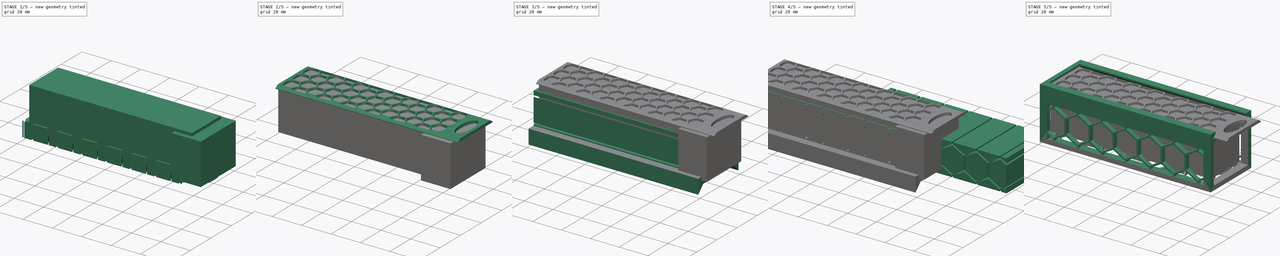
[diagram: build sequence overview — one tinted view per stage of 5, left to right]
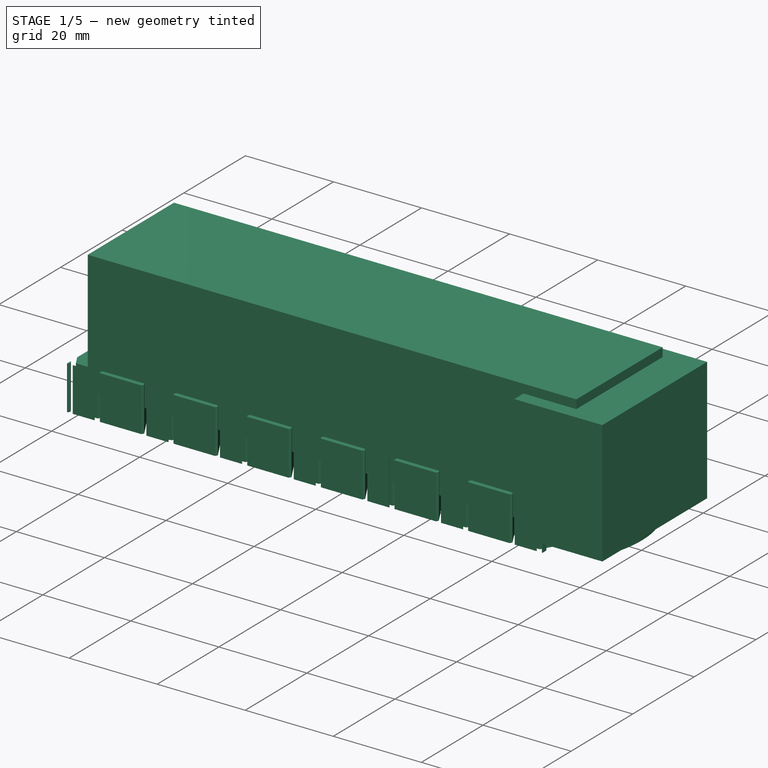
[diagram: stage 1 of 5 — iso view after this stage's code; geometry added in this stage tinted green]
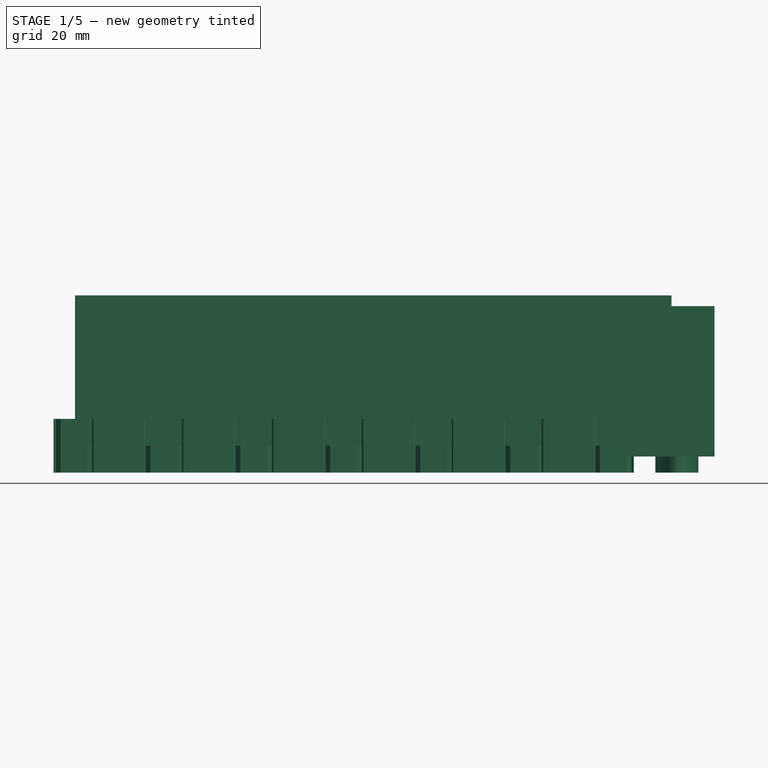
[diagram: stage 1 of 5 — front view after this stage's code; geometry added in this stage tinted green]
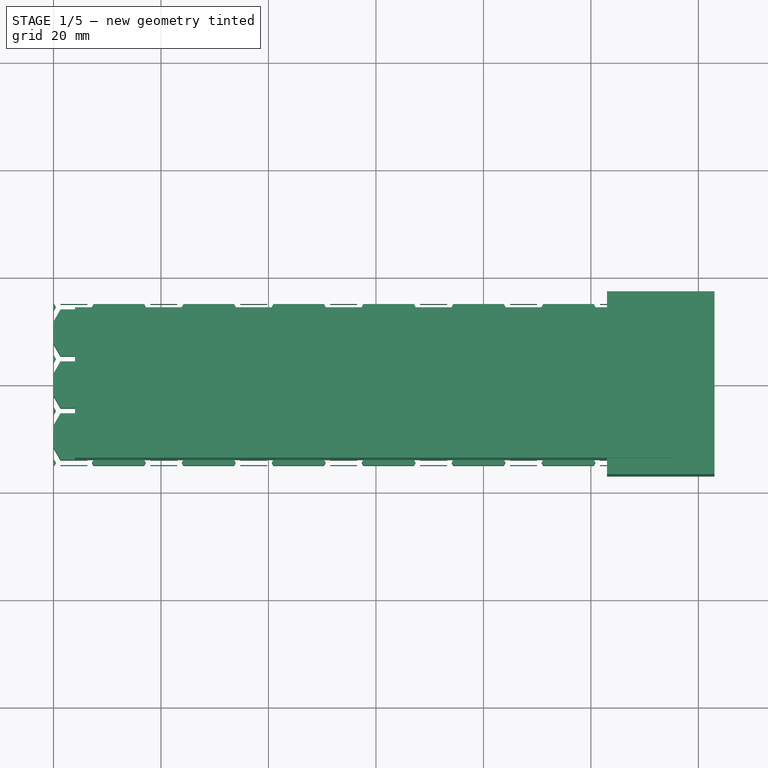
[diagram: stage 1 of 5 — top view after this stage's code; geometry added in this stage tinted green]
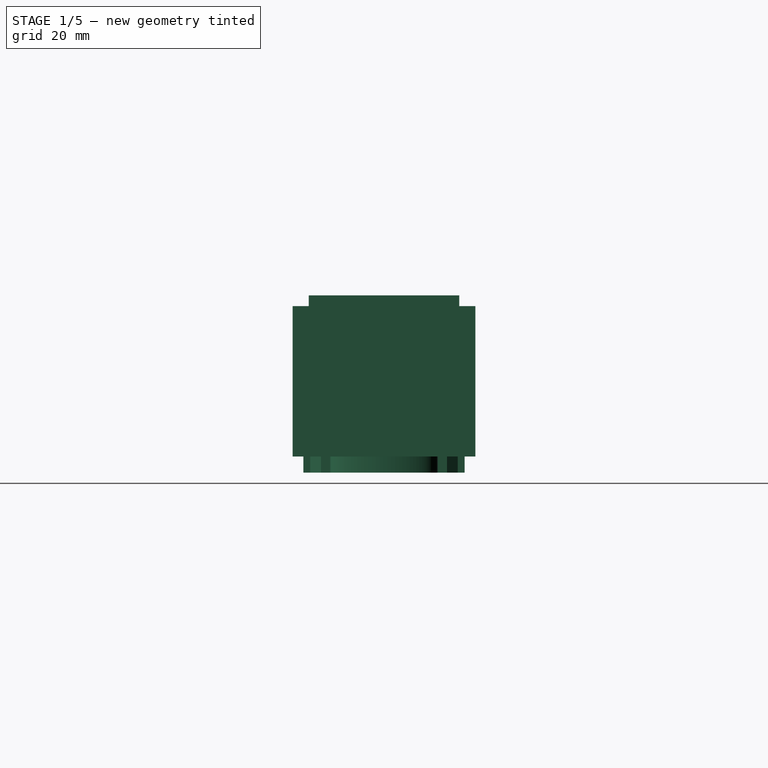
[diagram: stage 1 of 5 — right view after this stage's code; geometry added in this stage tinted green]
FCSTD DOCUMENT  (FreeCAD 0.20R29410 (Git))
Label: box_sliding_lid
License: All rights reserved
LicenseURL: http://en.wikipedia.org/wiki/All_rights_reserved
objects: Part::Box×10, Part::Cut×7, Part::MultiFuse×5, Part::FeaturePython×4, Part::Compound×4, Sketcher::SketchObject×3, PartDesign::Pad×3, PartDesign::Body×3, Part::Mirroring×1, Spreadsheet::Sheet×1, Part::Fillet×1, Part::Ellipse×1, Part::Extrusion×1, Part::Feature×1
note: 47 computed .brp shape members not serialized (recipe doc carries the construction recipe); baked Part::Feature solids carry a one-line shape summary decoded from their .brp

FEATURE [Part::Box] Box  label="internal cube"
  AttacherType = Attacher::AttachEngine3D
  Height = 28
  Length = 112
  Placement = pos=(-56,-17,3) rot=(0,0,1;0rad)
  Width = 34
  expr: .Placement.Base.x = -Length / 2
  expr: .Placement.Base.y = -Width / 2
  expr: .Placement.Base.z = <<p>>.wall
  expr: Height = <<p>>.internal_height
  expr: Length = <<p>>.internal_length
  expr: Width = <<p>>.internal_width
FEATURE [PartDesign::Body] Body002  label="lid body"
  Group = -> [Sketch002,Pad002]
  Origin = -> Origin002
  Placement = pos=(3,0,0) rot=(0,0,1;0rad)
  Tip = -> Pad002
FEATURE [Part::Box] Box007  label="HoneycombSolid lid cube"
  AttacherType = Attacher::AttachEngine3D
  Height = 10
  Length = 108
  Width = 30
  expr: Height = 10mm
  expr: Length = <<internal cube>>.Length - 4mm
  expr: Width = <<internal cube>>.Width - 4mm
FEATURE [Part::FeaturePython] HoneycombSolid004  label="HoneycombSolid lid"  # WARN: FeaturePython — macro-defined, semantics opaque (R4)
  Circumradius = 5
  Height = 10
  Length = 108
  Thickness = 1
  Width = 30
  expr: Height = <<HoneycombSolid lid cube>>.Height
  expr: Length = <<HoneycombSolid lid cube>>.Length
  expr: Width = <<HoneycombSolid lid cube>>.Width
FEATURE [Part::Cut] Cut005  label="HoneycombSolid lid cut"
  Base = -> Box007
  Placement = pos=(-60,-15,0) rot=(0,0,1;0rad)
  Tool = -> HoneycombSolid004
  expr: .Placement.Base.x = -<<internal cube>>.Length / 2 - 4mm
  expr: .Placement.Base.y = -<<HoneycombSolid lid>>.Width / 2
FEATURE [Part::Ellipse] Ellipse  label="handle hole ellipse"
  Angle1 = 0
  Angle2 = 360
  AttacherType = Attacher::AttachEngine3D
  MajorRadius = 10
  MinorRadius = 4
  Placement = pos=(0,0,0) rot=(0,0,1;1.5708rad)
  expr: MajorRadius = <<internal cube>>.Width / 2 - <<p>>.wall - 4mm
FEATURE [Part::Extrusion] Extrude  label="handle hole extrude"
  Base = -> Ellipse
  Dir = (0,0,1)
  DirMode = 2
  FaceMakerClass = Part::FaceMakerBullseye
  LengthFwd = 10
  LengthRev = 0
  Placement = pos=(56,0,0) rot=(0,0,1;0rad)
  Solid = true
  Symmetric = false
  expr: .Placement.Base.x = <<internal cube>>.Length / 2
FEATURE [Part::Box] Box008  label="insert muckup"
  AttacherType = Attacher::AttachEngine3D
  Height = 28
  Length = 111
  Placement = pos=(-56,-14,5) rot=(0,0,1;0rad)
  Width = 28
FEATURE [Part::Box] Box009  label="X wall cube remover"
  AttacherType = Attacher::AttachEngine3D
  Height = 28
  Length = 20
  Placement = pos=(43,-17,3) rot=(0,0,1;0rad)
  Width = 34
  expr: .Placement.Base.y = -Width / 2
  expr: .Placement.Base.z = <<p>>.wall
  expr: Height = <<internal cube>>.Height
  expr: Length = 20mm
  expr: Width = <<internal cube>>.Width
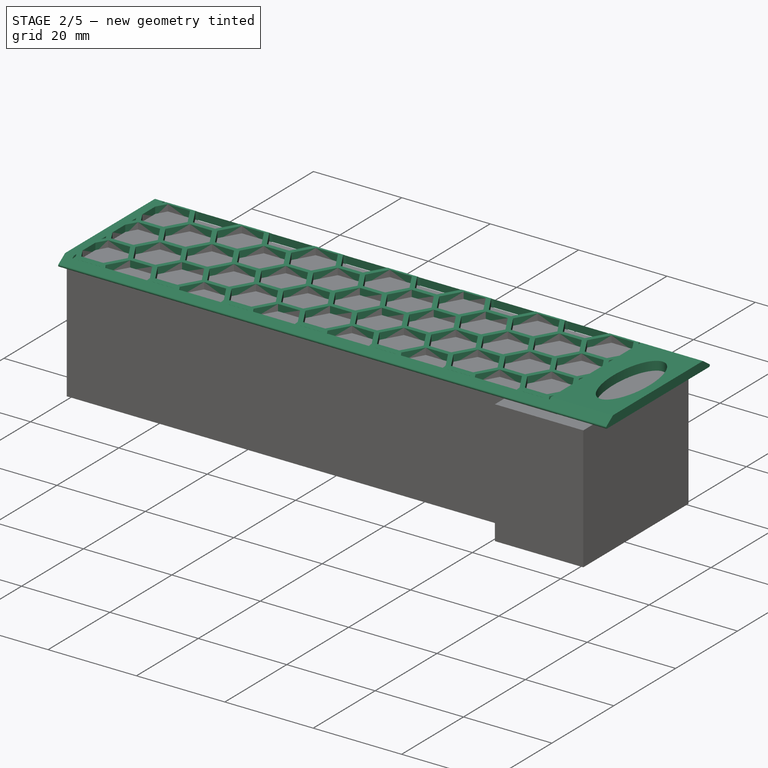
[diagram: stage 2 of 5 — iso view after this stage's code; geometry added in this stage tinted green]
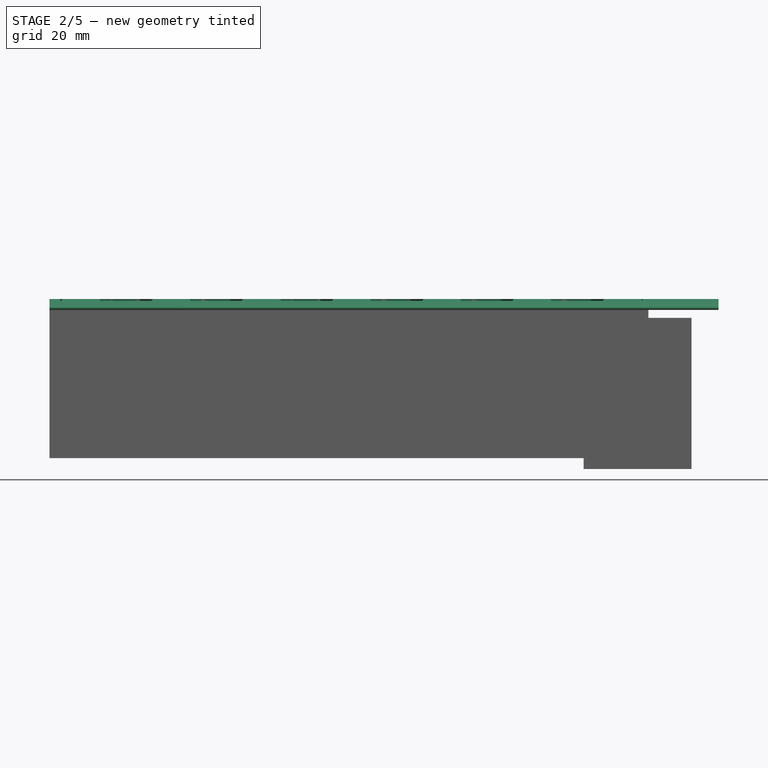
[diagram: stage 2 of 5 — front view after this stage's code; geometry added in this stage tinted green]
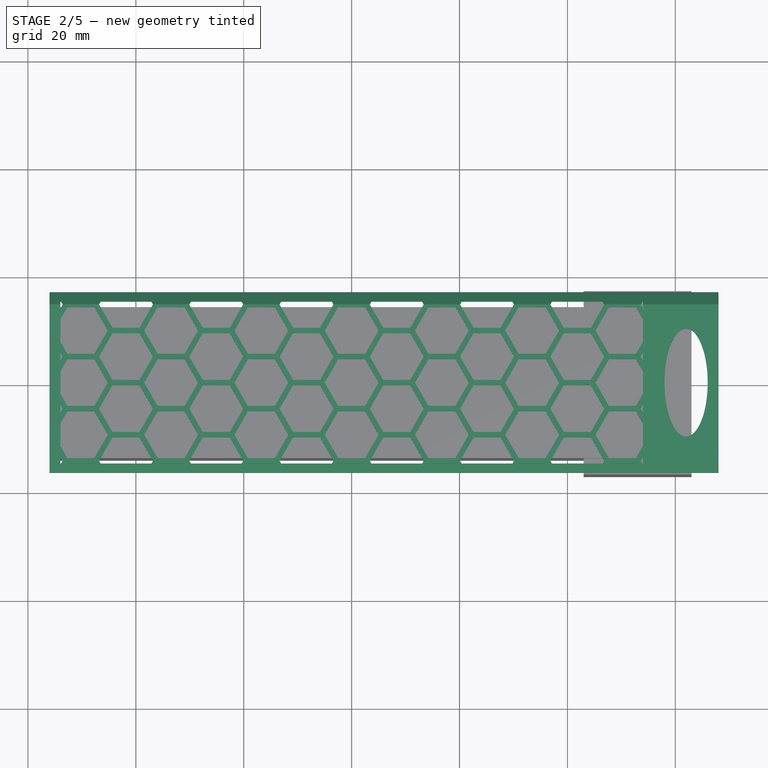
[diagram: stage 2 of 5 — top view after this stage's code; geometry added in this stage tinted green]
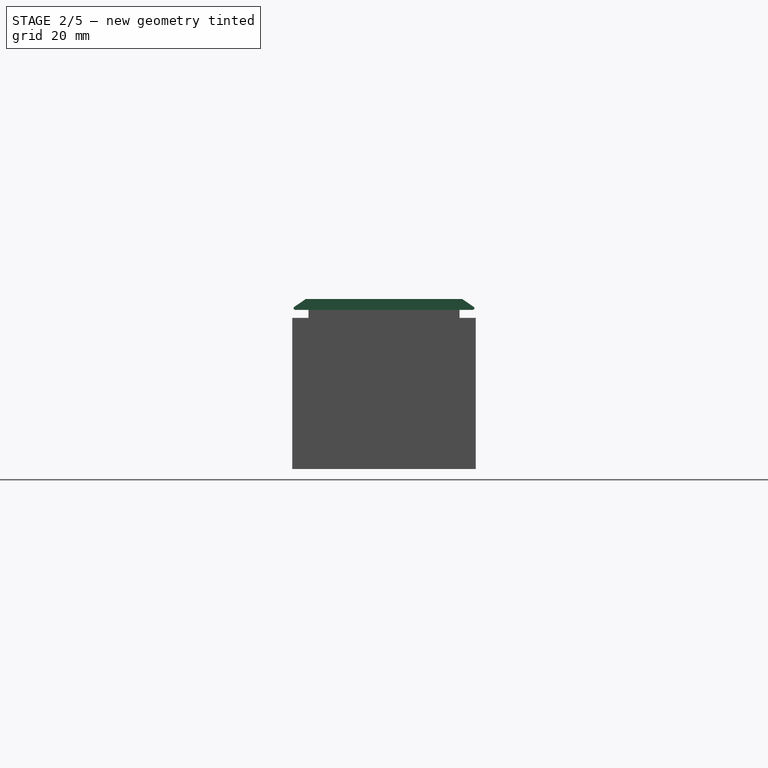
[diagram: stage 2 of 5 — right view after this stage's code; geometry added in this stage tinted green]
FEATURE [Part::Box] Box001  label="external cube"
  AttacherType = Attacher::AttachEngine3D
  Height = 31
  Length = 118
  Placement = pos=(-59,-20,0) rot=(0,0,1;0rad)
  Width = 40
  expr: .Placement.Base.x = -Length / 2
  expr: .Placement.Base.y = -Width / 2
  expr: Height = <<internal cube>>.Height + 3mm
  expr: Length = <<internal cube>>.Length + 6mm
  expr: Width = <<internal cube>>.Width + 6mm
FEATURE [Part::Box] Box003  label="top internal cube"
  AttacherType = Attacher::AttachEngine3D
  Height = 5
  Length = 118
  Placement = pos=(-56,-15,0) rot=(0,0,1;0rad)
  Width = 30
  expr: .Placement.Base.x = <<internal cube>>.Placement.Base.x
  expr: .Placement.Base.y = -Width / 2
  expr: Length = <<external cube>>.Length
  expr: Width = <<internal cube>>.Width - 4mm
FEATURE [Sketcher::SketchObject] Sketch002  label="lid sketch"
  FullyConstrained = true
  MapMode = 5
  Placement = pos=(0,0,0) rot=(0.57735,0.57735,0.57735;2.0944rad)
  Support = -> [YZ_Plane002]
  expr: .Constraints.lid_top_width = Sketch001.Constraints.lid_extract_top_width - 1mm
  expr: Constraints[7] = Sketch001.Constraints.lid_extract_bottom_width - 1mm
  expr: Constraints[8] = <<lid extract sketch>>.Constraints.lid_extract_height - 1mm
  sketch-geometry (4):
    g0: LineSegment StartX=-14.5 StartY=2 StartZ=0 EndX=14.5 EndY=2 EndZ=0
    g1: LineSegment StartX=-17.425 StartY=0 StartZ=0 EndX=17.425 EndY=-2e-16 EndZ=0
    g2: LineSegment StartX=-17.425 StartY=0 StartZ=0 EndX=-14.5 EndY=2 EndZ=0
    g3: LineSegment StartX=14.5 StartY=2 StartZ=0 EndX=17.425 EndY=-2e-16 EndZ=0
  constraints (10):
    c: Symmetric(g1,g1,g-2)
    c: Symmetric(g0,g0,g-2)
    c: Coincident(g2,g1)
    c: Coincident(g2,g0)
    c: Coincident(g3,g0)
    c: Coincident(g3,g1)
    c: DistanceX(g0,g0) = 29  'lid_top_width'
    c: DistanceX(g1,g1) = 34.85
    c: DistanceY(g1,g0) = 2
    c: PointOnObject(g1,g-1)
FEATURE [PartDesign::Pad] Pad002  label="lid pad"
  Direction = (1,-2e-16,3e-16)
  Length = 124
  Length2 = 10
  Midplane = true
  Placement = pos=(0,0,0) rot=(0.57735,0.57735,0.57735;2.0944rad)
  Profile = -> Sketch002
  ReferenceAxis = -> Sketch002 [N_Axis]
  Type = 0
  expr: Length = <<top internal cube>>.Length + 6mm
FEATURE [Part::Fillet] Fillet001  label="lid fillet"
  Base = -> Pad002
  Edges = 2 edges r=0.3: [Edge1,Edge8]
FEATURE [Part::MultiFuse] Fusion008  label="lid extract fusion"
  Shapes = -> [Cut005,Extrude]
FEATURE [Part::Cut] Cut006  label="lid cut"
  Base = -> Fillet001
  Tool = -> Fusion008
FEATURE [Part::Compound] Compound003  label="lid compound"
  Links = -> [Cut006]
  Placement = pos=(6,0,32.5) rot=(0,0,1;0rad)
  expr: .Placement.Base.z = <<external cube>>.Height + 1.5mm
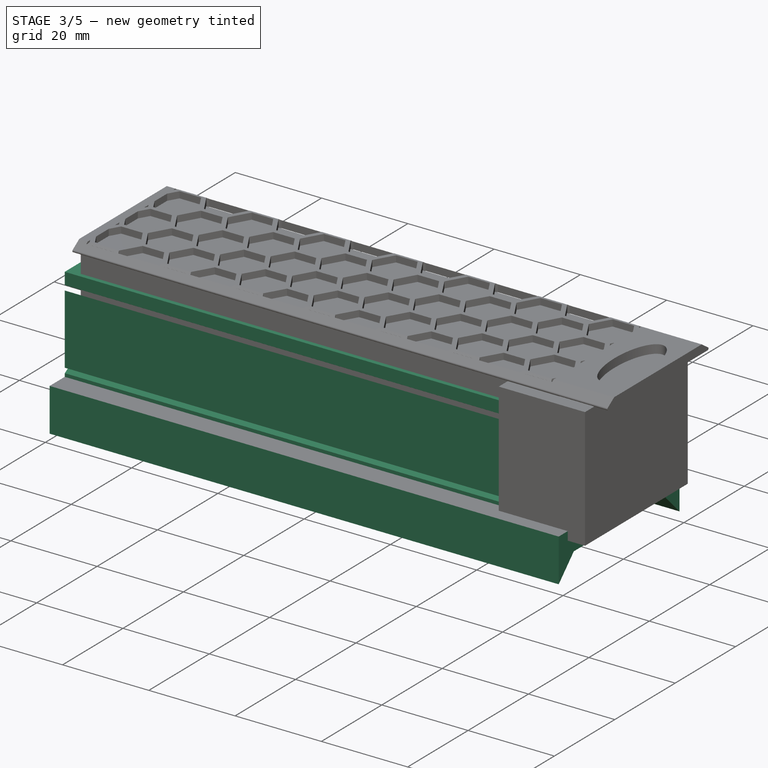
[diagram: stage 3 of 5 — iso view after this stage's code; geometry added in this stage tinted green]
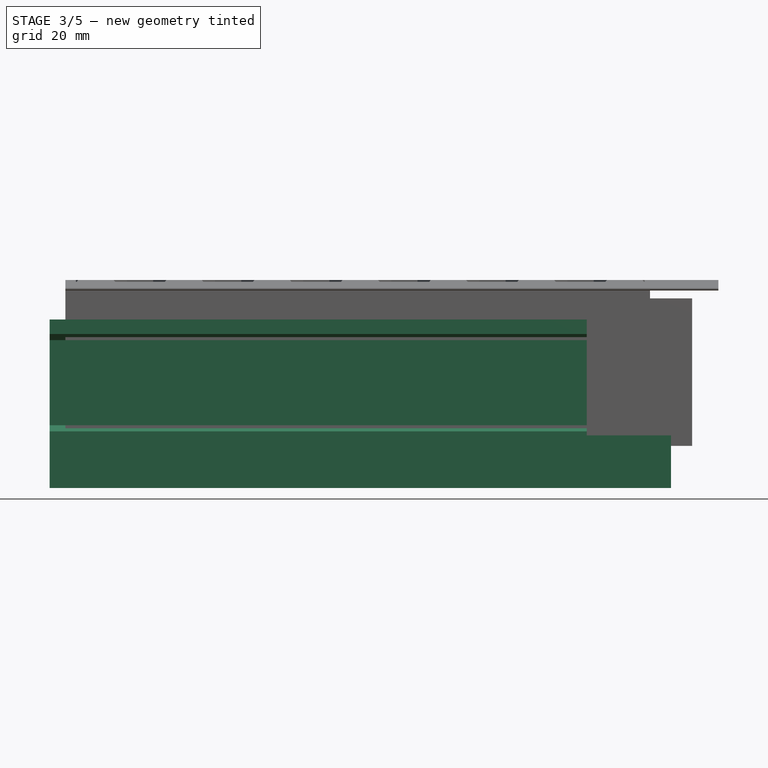
[diagram: stage 3 of 5 — front view after this stage's code; geometry added in this stage tinted green]
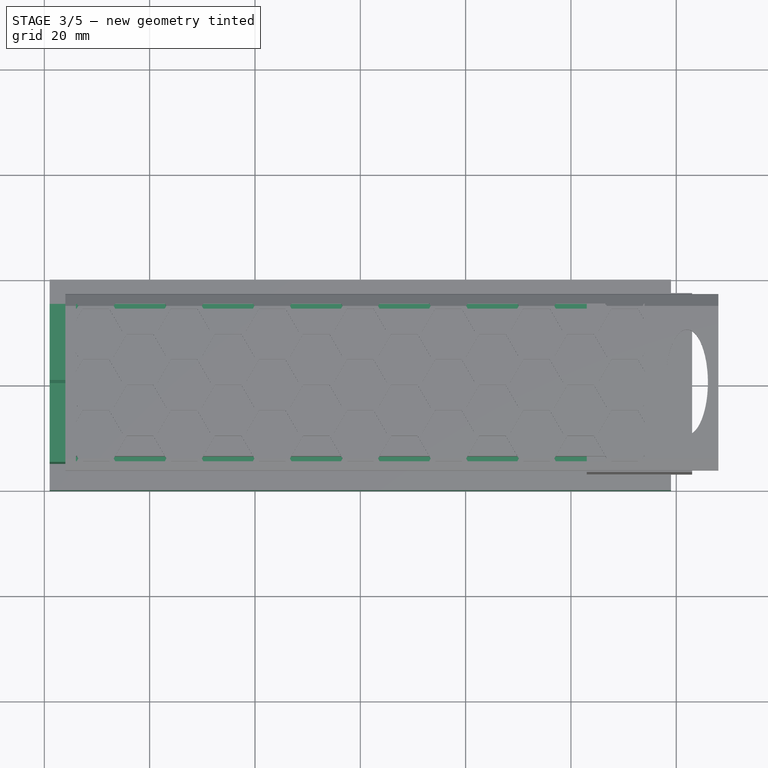
[diagram: stage 3 of 5 — top view after this stage's code; geometry added in this stage tinted green]
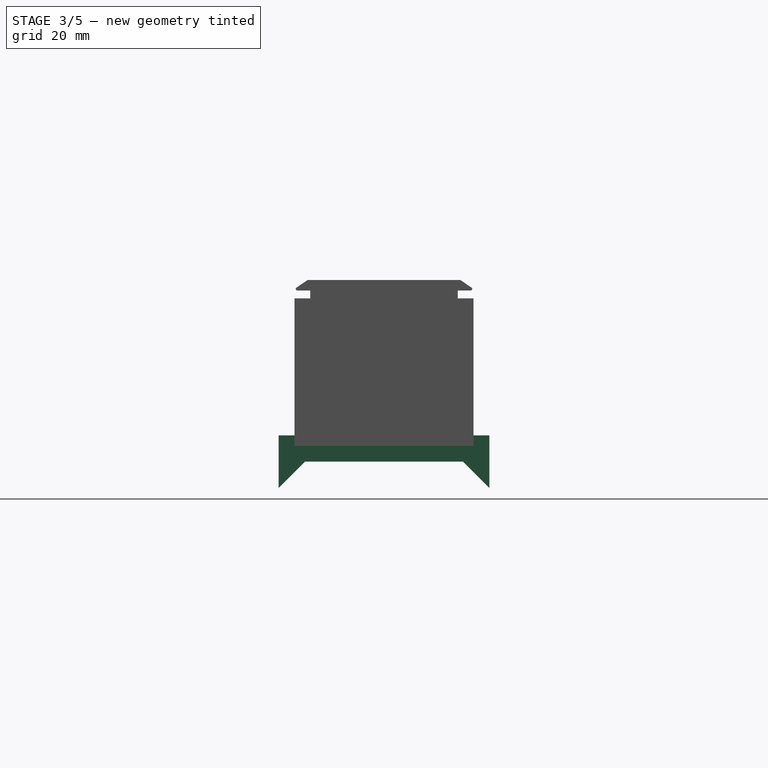
[diagram: stage 3 of 5 — right view after this stage's code; geometry added in this stage tinted green]
FEATURE [Part::Box] Box002  label="top external cube"
  AttacherType = Attacher::AttachEngine3D
  Height = 5
  Length = 118
  Placement = pos=(-59,-20,0) rot=(0,0,1;0rad)
  Width = 40
  expr: .Placement.Base.x = -Length / 2
  expr: .Placement.Base.y = -Width / 2
  expr: Length = <<external cube>>.Length
  expr: Width = <<external cube>>.Width
FEATURE [Sketcher::SketchObject] Sketch
  FullyConstrained = true
  MapMode = 5
  Placement = pos=(0,0,0) rot=(0.57735,0.57735,0.57735;2.0944rad)
  Support = -> [YZ_Plane]
  expr: Constraints[6] = <<top internal cube>>.Width / 2
  sketch-geometry (3):
    g0: LineSegment StartX=-15 StartY=5 StartZ=0 EndX=-20 EndY=0 EndZ=0
    g1: LineSegment StartX=-20 StartY=0 StartZ=0 EndX=-20 EndY=5 EndZ=0
    g2: LineSegment StartX=-20 StartY=5 StartZ=0 EndX=-15 EndY=5 EndZ=0
  constraints (10):
    c: Angle(g-1,g0) = 0.785398
    c: Coincident(g1,g0)
    c: Vertical(g1)
    c: Coincident(g2,g1)
    c: Coincident(g2,g0)
    c: Horizontal(g2)
    c: DistanceX(g0,g-1) = 15
    c: DistanceX(g2,g2) = 5
    c: PointOnObject(g0,g-1)
    c: DistanceY(g1,g1) = 5  'side_corner_hight'
FEATURE [PartDesign::Pad] Pad
  Direction = (1,-2e-16,3e-16)
  Length = 118
  Length2 = 10
  Midplane = true
  Placement = pos=(0,0,0) rot=(0.57735,0.57735,0.57735;2.0944rad)
  Profile = -> Sketch
  ReferenceAxis = -> Sketch [N_Axis]
  Type = 0
  expr: Length = <<external cube>>.Length
FEATURE [PartDesign::Body] Body
  Group = -> [Sketch,Pad]
  Origin = -> Origin
  Placement = pos=(0,0,-5) rot=(0,0,1;0rad)
  Tip = -> Pad
  expr: .Placement.Base.z = -<<Sketch>>.Constraints.side_corner_hight
FEATURE [Part::Mirroring] Part__Mirroring  label="Body (Mirror #1)"
  Base = (0,0,0)
  Normal = (0,1,0)
  Source = -> Body
FEATURE [Part::Box] Box006  label="HoneycombSolid X cube"
  AttacherType = Attacher::AttachEngine3D
  Height = 118
  Length = 24
  Width = 30
  expr: Height = <<HoneycombSolid X>>.Height
  expr: Length = <<HoneycombSolid X>>.Length
  expr: Width = <<HoneycombSolid X>>.Width
FEATURE [Part::FeaturePython] HoneycombSolid002  label="HoneycombSolid X"  # WARN: FeaturePython — macro-defined, semantics opaque (R4)
  Circumradius = 9
  Height = 118
  Length = 24
  Thickness = 1
  Width = 30
  expr: Circumradius = <<p>>.honeyhole_radius
  expr: Height = <<external cube>>.Length
  expr: Length = <<internal cube>>.Height - 4mm
  expr: Width = <<internal cube>>.Width - 4mm
FEATURE [Part::Cut] Cut004  label="HoneycombSolid X cut"
  Base = -> Box006
  Placement = pos=(0,0,24) rot=(0,1,0;1.5708rad)
  Tool = -> HoneycombSolid002
FEATURE [Part::Compound] Compound002  label="HoneycombSolid X compound"
  Links = -> [Cut004]
  Placement = pos=(-59,-15,3) rot=(0,0,1;0rad)
  expr: .Placement.Base.x = -<<HoneycombSolid X>>.Height / 2
  expr: .Placement.Base.y = -<<HoneycombSolid X>>.Width / 2
  expr: .Placement.Base.z = <<p>>.wall
FEATURE [Part::MultiFuse] Fusion007  label="top fusion"
  Shapes = -> [Box002,Part__Mirroring,Body]
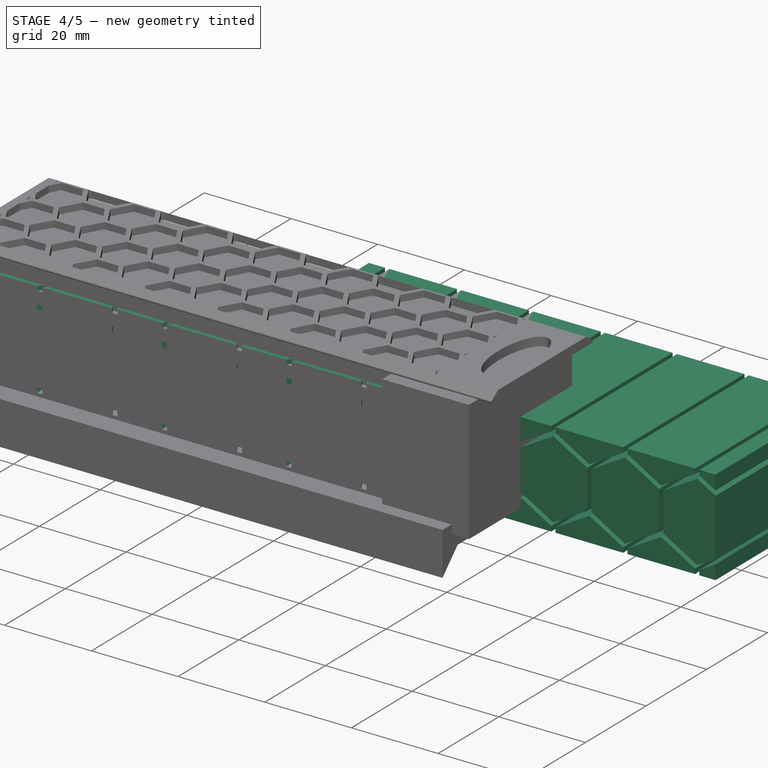
[diagram: stage 4 of 5 — iso view after this stage's code; geometry added in this stage tinted green]
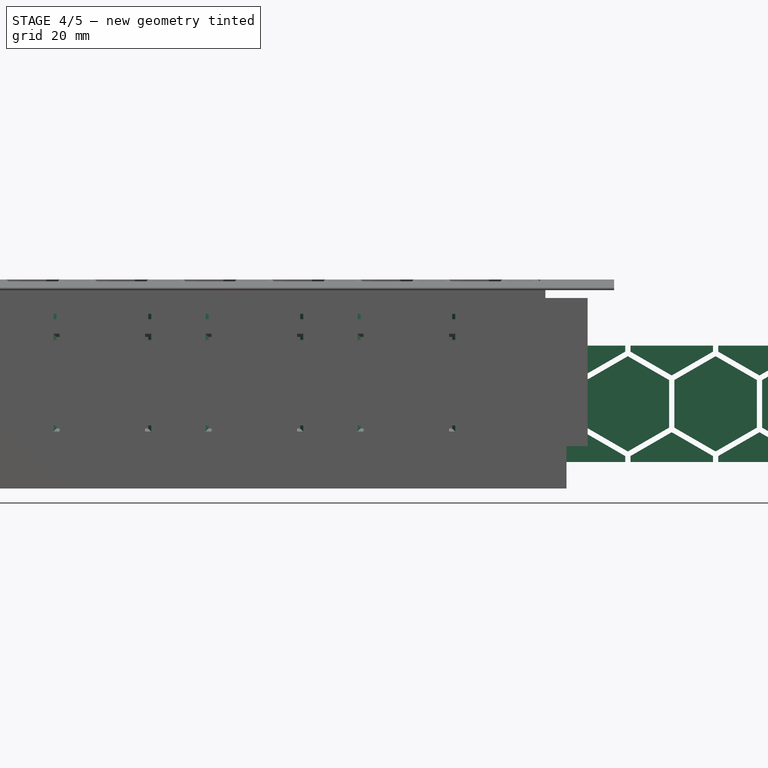
[diagram: stage 4 of 5 — front view after this stage's code; geometry added in this stage tinted green]
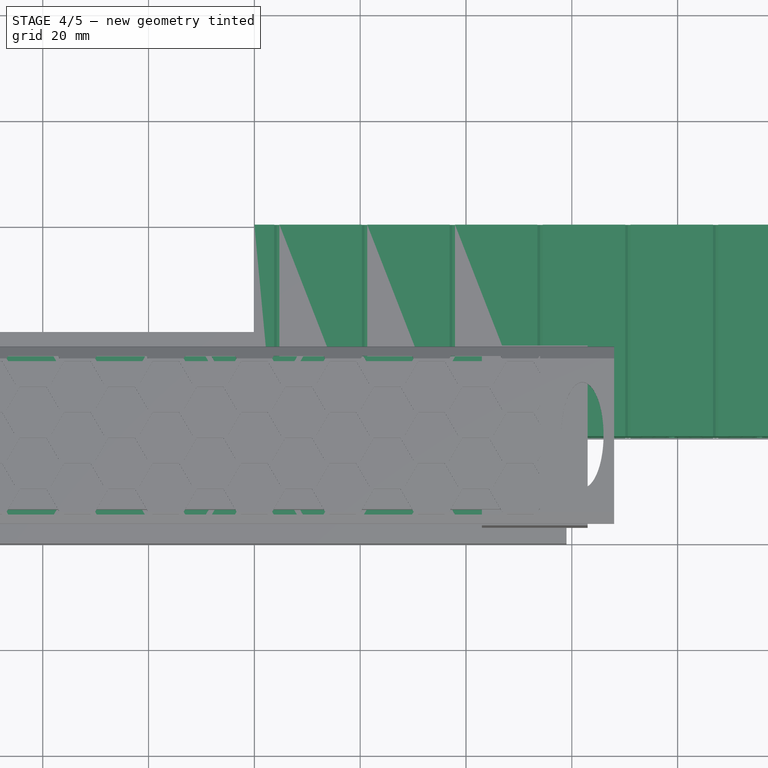
[diagram: stage 4 of 5 — top view after this stage's code; geometry added in this stage tinted green]
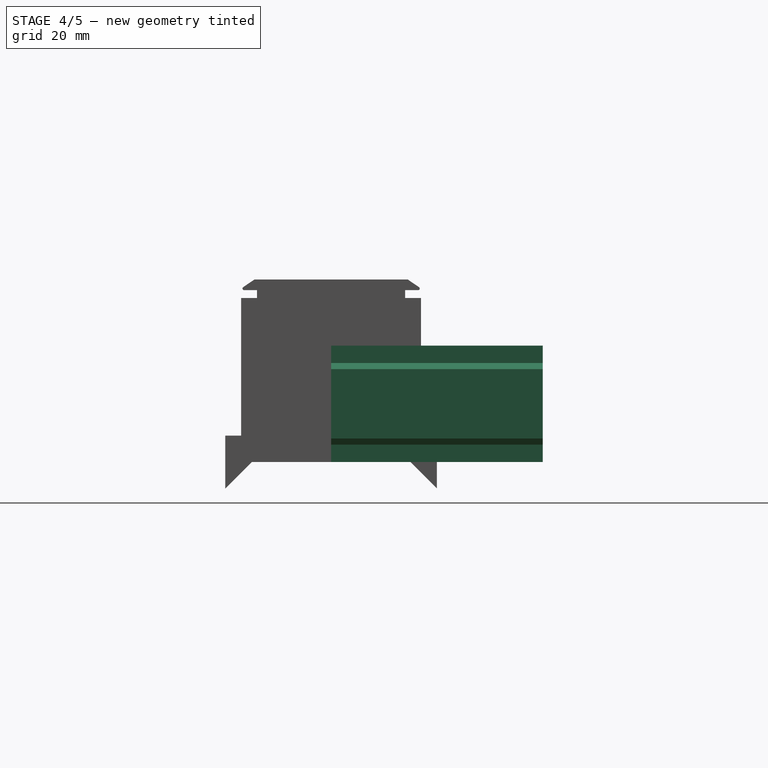
[diagram: stage 4 of 5 — right view after this stage's code; geometry added in this stage tinted green]
FEATURE [Part::FeaturePython] HoneycombSolid  label="HoneycombSolid Z"  # WARN: FeaturePython — macro-defined, semantics opaque (R4)
  Circumradius = 9
  Height = 28
  Length = 108
  Thickness = 1
  Width = 30
  expr: Circumradius = <<p>>.honeyhole_radius
  expr: Height = <<internal cube>>.Height
  expr: Length = <<internal cube>>.Length - 4mm
  expr: Width = <<internal cube>>.Width - 4mm
FEATURE [Part::Box] Box004  label="HoneycombSolid Z cube"
  AttacherType = Attacher::AttachEngine3D
  Height = 28
  Length = 108
  Width = 30
  expr: Height = <<HoneycombSolid Z>>.Height
  expr: Length = <<HoneycombSolid Z>>.Length
  expr: Width = <<HoneycombSolid Z>>.Width
FEATURE [Part::Cut] Cut002  label="HoneycombSolid Z cut"
  Base = -> Box004
  Tool = -> HoneycombSolid
FEATURE [Part::Box] Box005  label="HoneycombSolid Y cube"
  AttacherType = Attacher::AttachEngine3D
  Height = 40
  Length = 22
  Width = 108
  expr: Height = <<HoneycombSolid Y>>.Height
  expr: Length = <<HoneycombSolid Y>>.Length
  expr: Width = <<HoneycombSolid Y>>.Width
FEATURE [Part::FeaturePython] HoneycombSolid001  label="HoneycombSolid Y"  # WARN: FeaturePython — macro-defined, semantics opaque (R4)
  Circumradius = 9
  Height = 40
  Length = 22
  Thickness = 1
  Width = 108
  expr: Circumradius = <<p>>.honeyhole_radius
  expr: Height = <<external cube>>.Width
  expr: Length = <<internal cube>>.Height - 6mm
  expr: Width = <<internal cube>>.Length - 4mm
FEATURE [Part::Cut] Cut003  label="HoneycombSolid Y cut"
  Base = -> Box005
  Placement = pos=(108,40,-9e-15) rot=(0.57735,-0.57735,0.57735;2.0944rad)
  Tool = -> HoneycombSolid001
FEATURE [Part::Compound] Compound001  label="HoneycombSolid Z compound"
  Links = -> [Cut002]
  Placement = pos=(-54,-15,0) rot=(0,0,1;0rad)
  expr: .Placement.Base.x = -<<HoneycombSolid Z>>.Length / 2
  expr: .Placement.Base.y = -<<HoneycombSolid Z>>.Width / 2
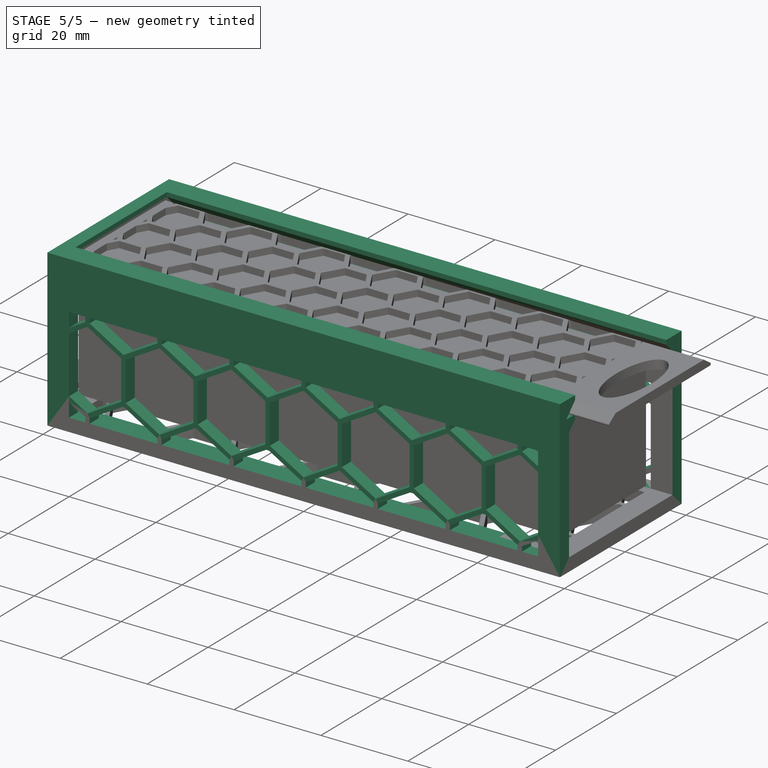
[diagram: stage 5 of 5 — iso view after this stage's code; geometry added in this stage tinted green]
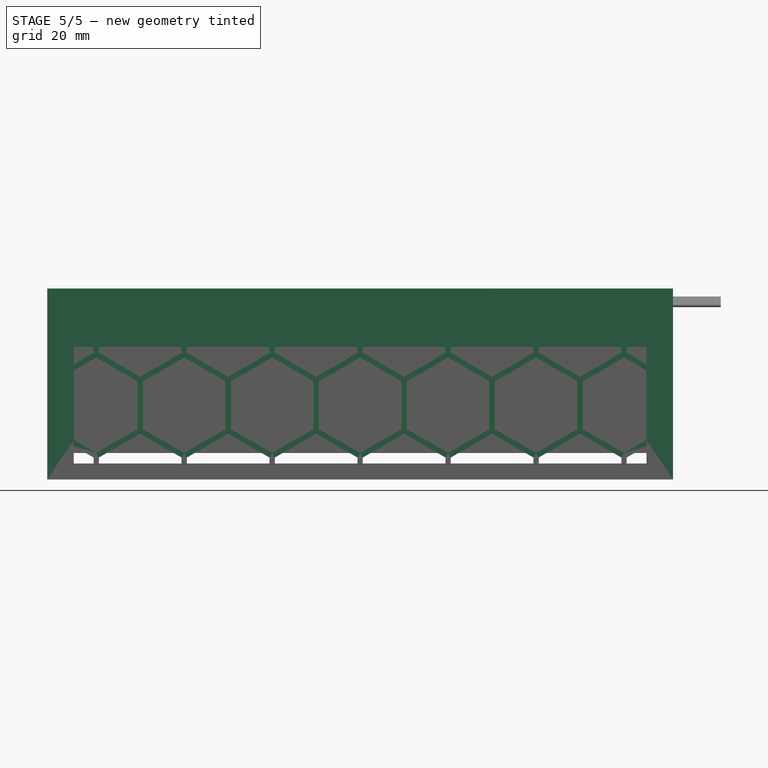
[diagram: stage 5 of 5 — front view after this stage's code; geometry added in this stage tinted green]
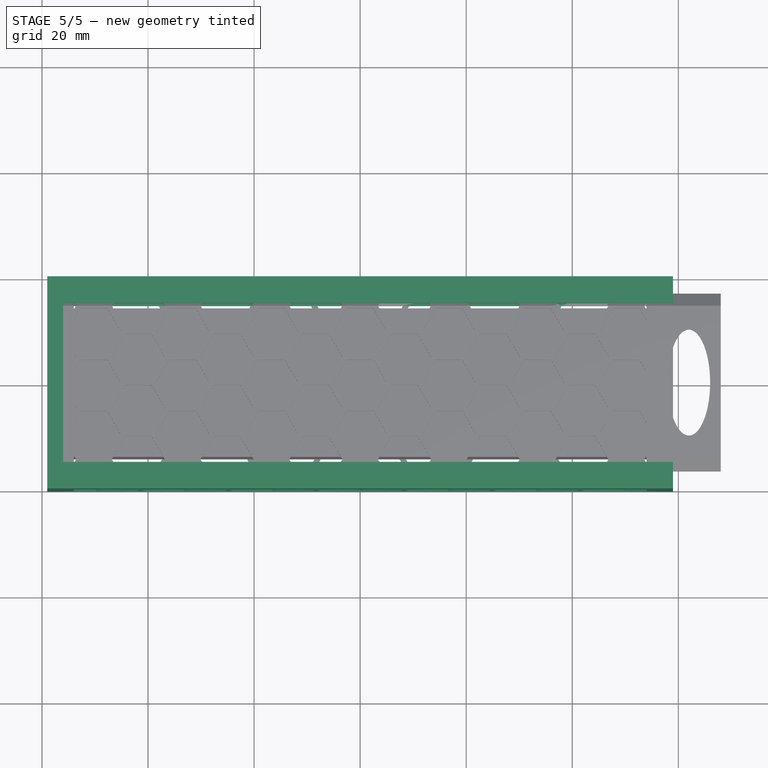
[diagram: stage 5 of 5 — top view after this stage's code; geometry added in this stage tinted green]
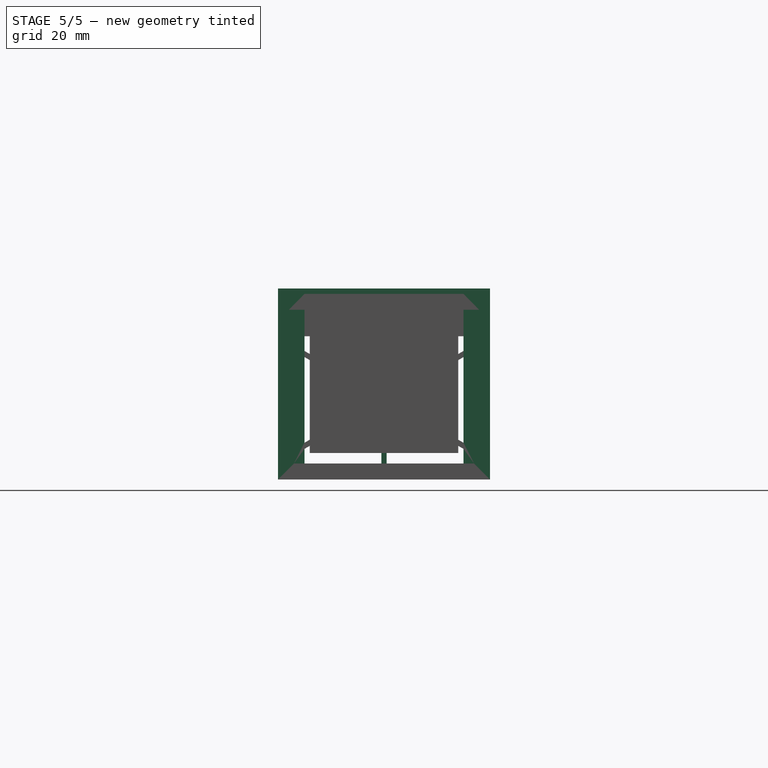
[diagram: stage 5 of 5 — right view after this stage's code; geometry added in this stage tinted green]
FEATURE [Sketcher::SketchObject] Sketch001  label="lid extract sketch"
  FullyConstrained = true
  MapMode = 5
  Placement = pos=(0,0,0) rot=(0.57735,0.57735,0.57735;2.0944rad)
  Support = -> [YZ_Plane001]
  expr: .Constraints.lid_extract_top_width = <<top internal cube>>.Width
  sketch-geometry (4):
    g0: LineSegment StartX=-15 StartY=3 StartZ=0 EndX=15 EndY=3 EndZ=0
    g1: LineSegment StartX=-17.925 StartY=-1e-16 StartZ=0 EndX=17.925 EndY=0 EndZ=0
    g2: LineSegment StartX=-17.925 StartY=-1e-16 StartZ=0 EndX=-15 EndY=3 EndZ=0
    g3: LineSegment StartX=15 StartY=3 StartZ=0 EndX=17.925 EndY=0 EndZ=0
  constraints (10):
    c: Symmetric(g1,g1,g-2)
    c: Symmetric(g0,g0,g-2)
    c: Coincident(g2,g1)
    c: Coincident(g2,g0)
    c: Coincident(g3,g0)
    c: Coincident(g3,g1)
    c: DistanceX(g0,g0) = 30  'lid_extract_top_width'
    c: DistanceX(g1,g1) = 35.85  'lid_extract_bottom_width'
    c: DistanceY(g1,g0) = 3  'lid_extract_height'
    c: PointOnObject(g1,g-1)
FEATURE [PartDesign::Pad] Pad001  label="lid extract pad"
  Direction = (1,-2e-16,3e-16)
  Length = 118
  Length2 = 10
  Midplane = true
  Placement = pos=(0,0,0) rot=(0.57735,0.57735,0.57735;2.0944rad)
  Profile = -> Sketch001
  ReferenceAxis = -> Sketch001 [N_Axis]
  Type = 0
  expr: Length = <<top internal cube>>.Length
FEATURE [PartDesign::Body] Body001  label="lid extract body"
  Group = -> [Sketch001,Pad001]
  Origin = -> Origin001
  Placement = pos=(3,0,1) rot=(0,0,1;0rad)
  Tip = -> Pad001
FEATURE [Part::MultiFuse] Fusion003  label="top cut fusion"
  Shapes = -> [Box003,Body001]
FEATURE [Spreadsheet::Sheet] Spreadsheet  label="p"
  cells = A1=internal_length; B1(internal_length)==112mm; A2=internal_width; B2(internal_width)==34mm; A3=internal_height; B3(internal_height)==28mm; A4=wall; B4(wall)==3mm; A5=honeyhole_radius; B5(honeyhole_radius)==9mm
FEATURE [Part::Compound] Compound  label="HoneycombSolid Y compound"
  Links = -> [Cut003]
  Placement = pos=(-54,-20,3) rot=(0,0,1;0rad)
  expr: .Placement.Base.x = -<<HoneycombSolid Y>>.Width / 2
  expr: .Placement.Base.y = -<<HoneycombSolid Y>>.Height / 2
  expr: .Placement.Base.z = <<p>>.wall
FEATURE [Part::Cut] Cut001  label="top cut"
  Base = -> Fusion007
  Placement = pos=(0,0,31) rot=(0,0,1;0rad)
  Tool = -> Fusion003
  expr: .Placement.Base.z = <<external cube>>.Height
FEATURE [Part::MultiFuse] Fusion004  label="bottom extract fusion"
  Shapes = -> [Box,Compound,Compound001,Compound002,Box009]
FEATURE [Part::Cut] Cut  label="bottom cut"
  Base = -> Box001
  Tool = -> Fusion004
FEATURE [Part::MultiFuse] Fusion  label="box body fusion"
  Shapes = -> [Cut001,Cut]
FEATURE [Part::Feature] Compound003_solid  label="lid compound (Solid)"
  shape: bbox 124 x 33.51 x 2 mm, 369 faces (baked)
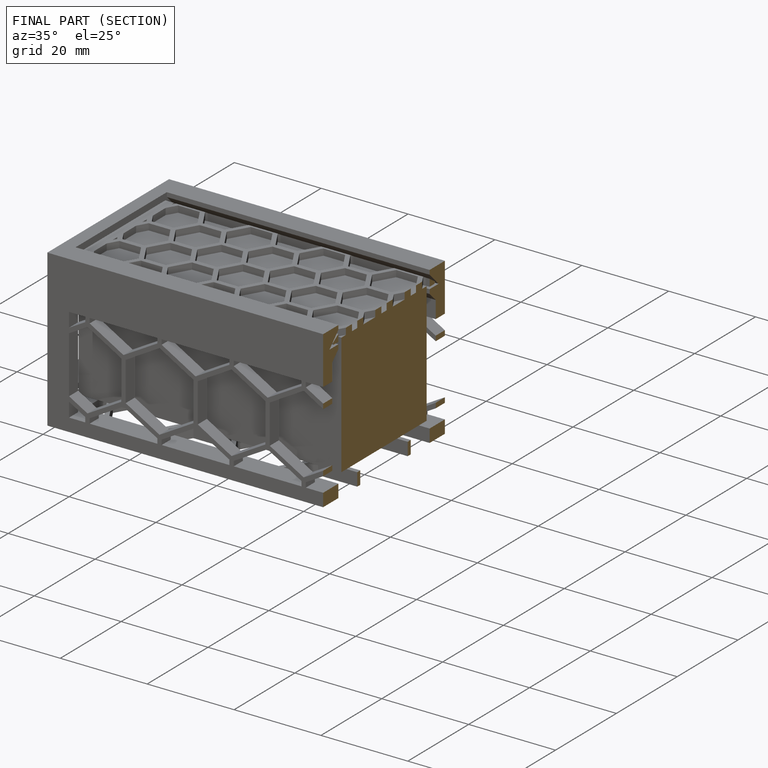
[diagram: finished part — half-section view (interior)]
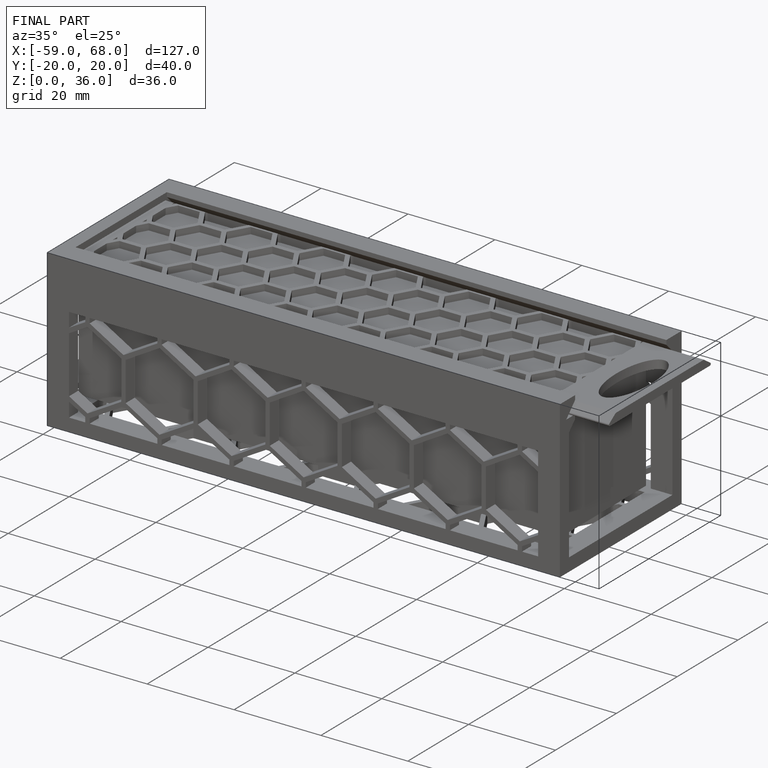
[diagram: finished part — iso view with bounding-box wireframe]
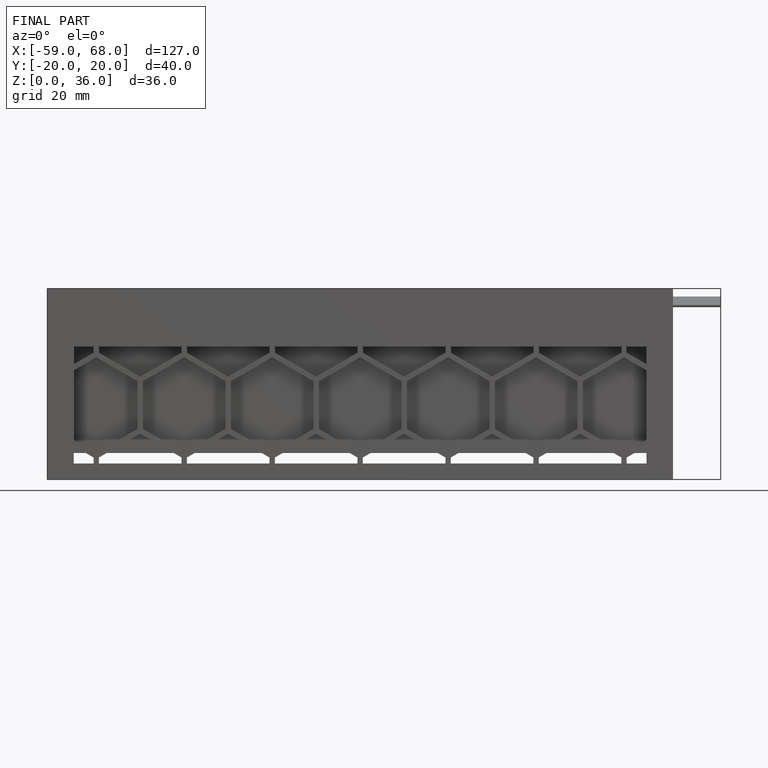
[diagram: finished part — front view with bounding-box wireframe]
